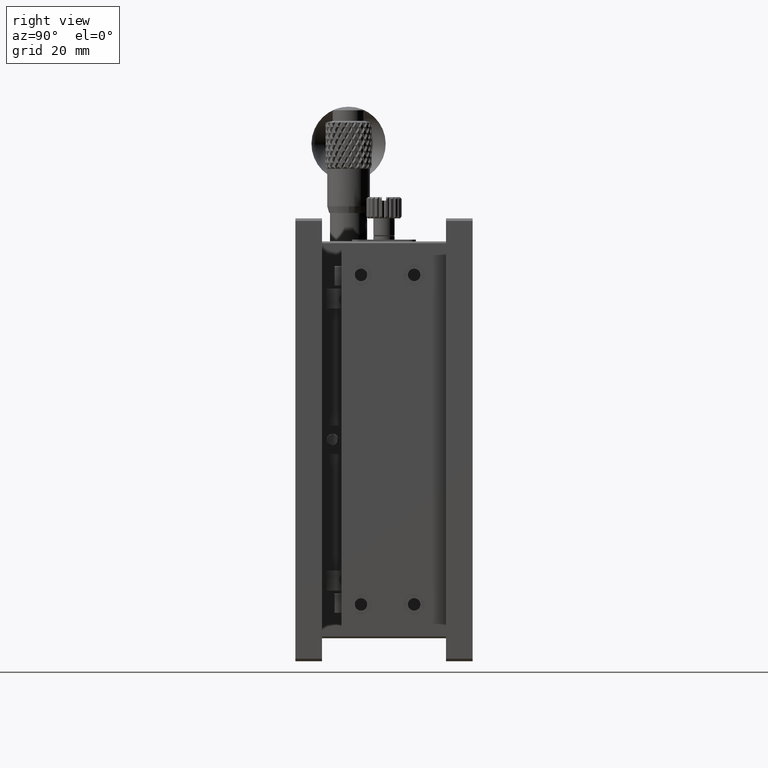
[diagram: clean part render]
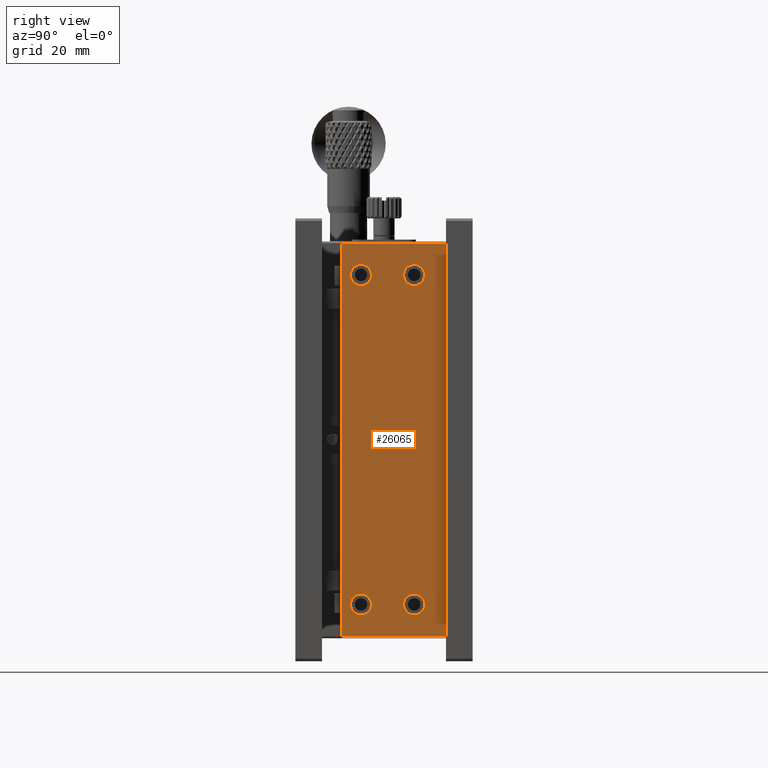
[diagram: same view with one face highlighted and labeled with its STEP entity id]
A machine part, right view. The second image highlights one B-rep face of the part: STEP entity #26065.
In plain terms, the highlighted planar face has unit normal (1, 0, 0).
Its self-contained STEP definition (entity closure, byte-faithful):
#240 = ORIENTED_EDGE ( 'NONE', *, *, #2036, .T. ) ;
#427 = ORIENTED_EDGE ( 'NONE', *, *, #38751, .T. ) ;
#479 = AXIS2_PLACEMENT_3D ( 'NONE', #6635, #3394, #7153 ) ;
#697 = DIRECTION ( 'NONE',  ( 0.000000000000000000, -0.000000000000000000, 1.000000000000000000 ) ) ;
#1261 = CARTESIAN_POINT ( 'NONE',  ( 116.0000000000000000, 13.00000000000000533, -7.000000000000000000 ) ) ;
#1842 = CARTESIAN_POINT ( 'NONE',  ( 116.0000000000000000, 18.50000000000000355, -16.00000000000000000 ) ) ;
#1987 = ORIENTED_EDGE ( 'NONE', *, *, #37870, .T. ) ;
#2036 = EDGE_CURVE ( 'NONE', #39338, #39338, #42220, .T. ) ;
#3394 = DIRECTION ( 'NONE',  ( -1.000000000000000000, -0.000000000000000000, -0.000000000000000000 ) ) ;
#3889 = VERTEX_POINT ( 'NONE', #29412 ) ;
#3957 = VECTOR ( 'NONE', #26640, 1000.000000000000000 ) ;
#5477 = FACE_BOUND ( 'NONE', #43873, .T. ) ;
#5867 = DIRECTION ( 'NONE',  ( 0.000000000000000000, 0.000000000000000000, -1.000000000000000000 ) ) ;
#6069 = EDGE_CURVE ( 'NONE', #51366, #51366, #7131, .T. ) ;
#6635 = CARTESIAN_POINT ( 'NONE',  ( 116.0000000000000000, 33.50000000000000000, -109.0000000000000000 ) ) ;
#7131 = CIRCLE ( 'NONE', #16544, 2.980000000000010196 ) ;
#7153 = DIRECTION ( 'NONE',  ( 0.000000000000000000, 0.000000000000000000, -1.000000000000000000 ) ) ;
#7940 = LINE ( 'NONE', #37468, #41784 ) ;
#13334 = DIRECTION ( 'NONE',  ( 0.000000000000000000, 0.000000000000000000, -1.000000000000000000 ) ) ;
#14635 = CARTESIAN_POINT ( 'NONE',  ( 116.0000000000000000, 18.50000000000000355, -111.9800000000000040 ) ) ;
#14911 = CARTESIAN_POINT ( 'NONE',  ( 115.9999999999999858, 13.00000000000000533, -118.0000000000000284 ) ) ;
#15406 = DIRECTION ( 'NONE',  ( 0.000000000000000000, 0.000000000000000000, -1.000000000000000000 ) ) ;
#15419 = EDGE_CURVE ( 'NONE', #43167, #27279, #30669, .T. ) ;
#16544 = AXIS2_PLACEMENT_3D ( 'NONE', #33720, #21381, #13334 ) ;
#16775 = DIRECTION ( 'NONE',  ( -0.000000000000000000, 1.000000000000000000, 0.000000000000000000 ) ) ;
#17182 = EDGE_CURVE ( 'NONE', #3889, #43167, #7940, .T. ) ;
#17619 = EDGE_LOOP ( 'NONE', ( #427 ) ) ;
#18915 = ORIENTED_EDGE ( 'NONE', *, *, #50958, .T. ) ;
#20802 = VERTEX_POINT ( 'NONE', #49759 ) ;
#21381 = DIRECTION ( 'NONE',  ( -1.000000000000000000, -0.000000000000000000, -0.000000000000000000 ) ) ;
#21601 = CARTESIAN_POINT ( 'NONE',  ( 116.0000000000000000, 13.00000000000000533, -118.0000000000000142 ) ) ;
#21649 = AXIS2_PLACEMENT_3D ( 'NONE', #49691, #48644, #24497 ) ;
#22453 = VERTEX_POINT ( 'NONE', #51398 ) ;
#22770 = VECTOR ( 'NONE', #38308, 1000.000000000000000 ) ;
#23209 = CARTESIAN_POINT ( 'NONE',  ( 116.0000000000000000, 13.00000000000000533, -7.000000000000000000 ) ) ;
#24497 = DIRECTION ( 'NONE',  ( 0.000000000000000000, 0.000000000000000000, -1.000000000000000000 ) ) ;
#25838 = EDGE_CURVE ( 'NONE', #29907, #3889, #37176, .T. ) ;
#26065 = ADVANCED_FACE ( 'NONE', ( #39319, #30190, #27236, #5477, #52661 ), #47873, .T. ) ;
#26244 = CIRCLE ( 'NONE', #479, 2.980000000000010196 ) ;
#26640 = DIRECTION ( 'NONE',  ( 0.000000000000000000, -1.000000000000000000, -0.000000000000000000 ) ) ;
#26992 = EDGE_LOOP ( 'NONE', ( #51001 ) ) ;
#27236 = FACE_BOUND ( 'NONE', #26992, .T. ) ;
#27279 = VERTEX_POINT ( 'NONE', #34123 ) ;
#28141 = CIRCLE ( 'NONE', #45266, 2.980000000000010196 ) ;
#29303 = ORIENTED_EDGE ( 'NONE', *, *, #17182, .T. ) ;
#29412 = CARTESIAN_POINT ( 'NONE',  ( 116.0000000000000000, 42.50000000000000711, -118.0000000000000142 ) ) ;
#29907 = VERTEX_POINT ( 'NONE', #14911 ) ;
#30190 = FACE_BOUND ( 'NONE', #51822, .T. ) ;
#30669 = LINE ( 'NONE', #51012, #3957 ) ;
#31539 = CARTESIAN_POINT ( 'NONE',  ( 116.0000000000000000, 33.50000000000000000, -18.98000000000001108 ) ) ;
#33720 = CARTESIAN_POINT ( 'NONE',  ( 116.0000000000000000, 18.50000000000000355, -109.0000000000000000 ) ) ;
#34123 = CARTESIAN_POINT ( 'NONE',  ( 116.0000000000000000, 13.00000000000000533, -7.000000000000000000 ) ) ;
#37176 = LINE ( 'NONE', #21601, #40027 ) ;
#37266 = CARTESIAN_POINT ( 'NONE',  ( 116.0000000000000000, 42.50000000000000000, -7.000000000000000888 ) ) ;
#37468 = CARTESIAN_POINT ( 'NONE',  ( 116.0000000000000000, 42.50000000000000000, 0.000000000000000000 ) ) ;
#37870 = EDGE_CURVE ( 'NONE', #27279, #29907, #38842, .T. ) ;
#38308 = DIRECTION ( 'NONE',  ( 0.000000000000000000, 0.000000000000000000, -1.000000000000000000 ) ) ;
#38751 = EDGE_CURVE ( 'NONE', #22453, #22453, #26244, .T. ) ;
#38842 = LINE ( 'NONE', #1261, #22770 ) ;
#39319 = FACE_OUTER_BOUND ( 'NONE', #40151, .T. ) ;
#39338 = VERTEX_POINT ( 'NONE', #31539 ) ;
#39680 = DIRECTION ( 'NONE',  ( -1.000000000000000000, -0.000000000000000000, -0.000000000000000000 ) ) ;
#40027 = VECTOR ( 'NONE', #16775, 1000.000000000000000 ) ;
#40151 = EDGE_LOOP ( 'NONE', ( #1987, #49754, #29303, #40828 ) ) ;
#40828 = ORIENTED_EDGE ( 'NONE', *, *, #15419, .T. ) ;
#41784 = VECTOR ( 'NONE', #697, 1000.000000000000000 ) ;
#42220 = CIRCLE ( 'NONE', #21649, 2.980000000000010196 ) ;
#43167 = VERTEX_POINT ( 'NONE', #37266 ) ;
#43867 = DIRECTION ( 'NONE',  ( 1.000000000000000000, 0.000000000000000000, 0.000000000000000000 ) ) ;
#43873 = EDGE_LOOP ( 'NONE', ( #18915 ) ) ;
#45266 = AXIS2_PLACEMENT_3D ( 'NONE', #1842, #39680, #5867 ) ;
#47873 = PLANE ( 'NONE',  #51136 ) ;
#48644 = DIRECTION ( 'NONE',  ( -1.000000000000000000, -0.000000000000000000, -0.000000000000000000 ) ) ;
#49691 = CARTESIAN_POINT ( 'NONE',  ( 116.0000000000000000, 33.50000000000000000, -16.00000000000000000 ) ) ;
#49754 = ORIENTED_EDGE ( 'NONE', *, *, #25838, .T. ) ;
#49759 = CARTESIAN_POINT ( 'NONE',  ( 116.0000000000000000, 18.50000000000000355, -18.98000000000001108 ) ) ;
#50958 = EDGE_CURVE ( 'NONE', #20802, #20802, #28141, .T. ) ;
#51001 = ORIENTED_EDGE ( 'NONE', *, *, #6069, .T. ) ;
#51012 = CARTESIAN_POINT ( 'NONE',  ( 116.0000000000000000, 13.00000000000000533, -7.000000000000000000 ) ) ;
#51136 = AXIS2_PLACEMENT_3D ( 'NONE', #23209, #43867, #15406 ) ;
#51366 = VERTEX_POINT ( 'NONE', #14635 ) ;
#51398 = CARTESIAN_POINT ( 'NONE',  ( 116.0000000000000000, 33.50000000000000000, -111.9800000000000040 ) ) ;
#51822 = EDGE_LOOP ( 'NONE', ( #240 ) ) ;
#52661 = FACE_BOUND ( 'NONE', #17619, .T. ) ;